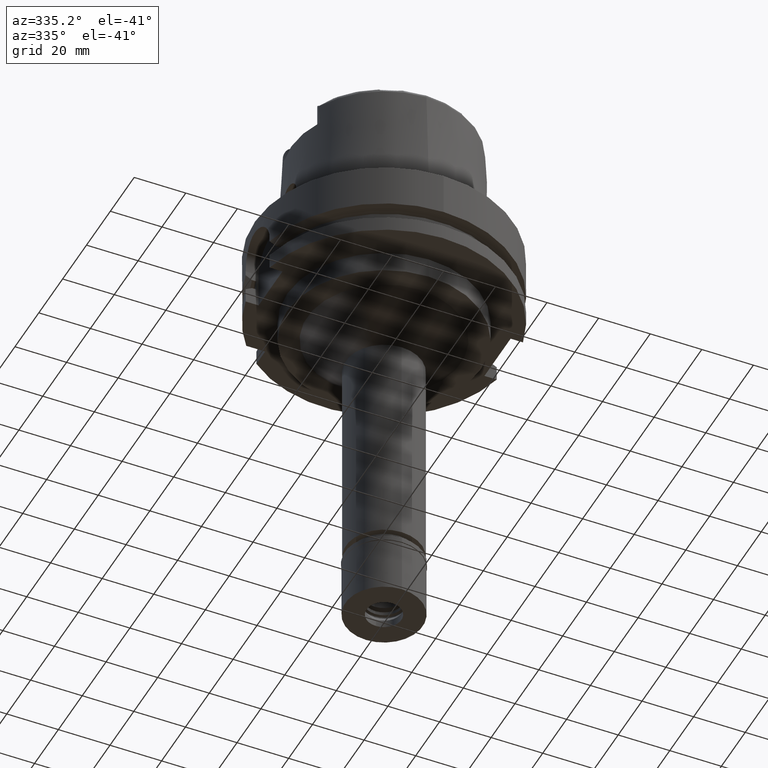
[diagram: clean part render]
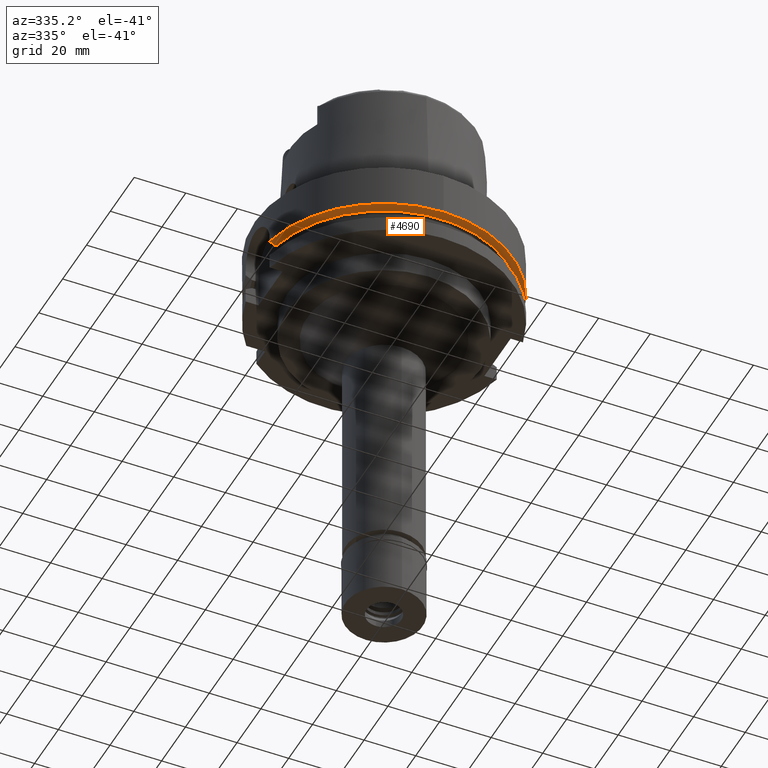
[diagram: same view with one face highlighted and labeled with its STEP entity id]
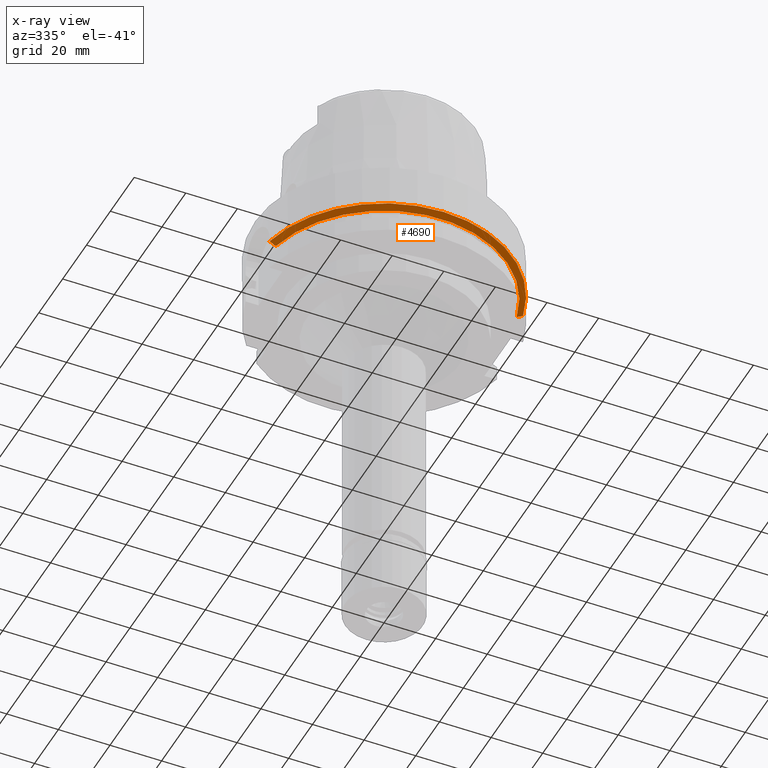
[diagram: x-ray of the same camera — body ghosted, the highlighted face saturated]
A machine part, auxiliary view. The second image highlights one B-rep face of the part: STEP entity #4690.
The next image is the same camera in x-ray: the body ghosted, the highlighted face saturated — about 0% of this face is hidden behind the body in this view.
In plain terms, the highlighted conical surface has half-angle 60 deg.
Its self-contained STEP definition (entity closure, byte-faithful):
#120 = CARTESIAN_POINT ( 'NONE',  ( 47.14851446809999658, -11.00000000000000000, -17.66774350266999960 ) ) ;
#169 = CIRCLE ( 'NONE', #5538, 49.99999999999997868 ) ;
#189 = DIRECTION ( 'NONE',  ( 0.0000000000000000000, 0.0000000000000000000, 1.000000000000000000 ) ) ;
#248 = CARTESIAN_POINT ( 'NONE',  ( 0.0000000000000000000, -50.00000000000000000, -16.75240473580999989 ) ) ;
#426 = B_SPLINE_CURVE_WITH_KNOTS ( 'NONE', 3,
 ( #2859, #2467, #2949, #3371, #4571, #5536 ),
 .UNSPECIFIED., .F., .F.,
 ( 4, 1, 1, 4 ),
 ( 0.0000000000000000000, 0.3333333333333000081, 0.6666666666667000474, 1.000000000000000000 ),
 .UNSPECIFIED. ) ;
#460 = CARTESIAN_POINT ( 'NONE',  ( -48.98979485565999425, -10.00000000000000000, -16.75240473580999989 ) ) ;
#554 = DIRECTION ( 'NONE',  ( 0.0000000000000000000, 1.000000000000000000, 0.0000000000000000000 ) ) ;
#763 = DIRECTION ( 'NONE',  ( 0.0000000000000000000, -1.000000000000000000, 0.0000000000000000000 ) ) ;
#1037 = CIRCLE ( 'NONE', #2110, 47.62259526419000366 ) ;
#1055 = AXIS2_PLACEMENT_3D ( 'NONE', #2047, #5476, #763 ) ;
#1263 = VERTEX_POINT ( 'NONE', #248 ) ;
#1410 = CARTESIAN_POINT ( 'NONE',  ( 48.50399904748000068, -11.00000000000000000, -16.90503024962000111 ) ) ;
#1470 = VERTEX_POINT ( 'NONE', #3203 ) ;
#1482 = DIRECTION ( 'NONE',  ( 0.0000000000000000000, 0.0000000000000000000, 1.000000000000000000 ) ) ;
#1544 = B_SPLINE_CURVE_WITH_KNOTS ( 'NONE', 3,
 ( #3462, #1410, #5170, #120, #3574, #5288 ),
 .UNSPECIFIED., .F., .F.,
 ( 4, 1, 1, 4 ),
 ( 0.0000000000000000000, 0.3333333333333000081, 0.6666666666667000474, 1.000000000000000000 ),
 .UNSPECIFIED. ) ;
#1737 = VERTEX_POINT ( 'NONE', #460 ) ;
#1850 = CONICAL_SURFACE ( 'NONE', #3479, 48.81129763208999606, 1.047197551196400456 ) ;
#1880 = DIRECTION ( 'NONE',  ( -0.9777047459300259868, -0.2099843560504055240, 0.0000000000000000000 ) ) ;
#2034 = EDGE_CURVE ( 'NONE', #1470, #2123, #1544, .T. ) ;
#2047 = CARTESIAN_POINT ( 'NONE',  ( 0.0000000000000000000, 0.0000000000000000000, -16.75240473580999989 ) ) ;
#2088 = VERTEX_POINT ( 'NONE', #2664 ) ;
#2110 = AXIS2_PLACEMENT_3D ( 'NONE', #2309, #189, #1880 ) ;
#2123 = VERTEX_POINT ( 'NONE', #3038 ) ;
#2309 = CARTESIAN_POINT ( 'NONE',  ( 0.0000000000000000000, 0.0000000000000000000, -18.12500000000000000 ) ) ;
#2333 = EDGE_CURVE ( 'NONE', #2088, #1737, #426, .T. ) ;
#2467 = CARTESIAN_POINT ( 'NONE',  ( -46.83084020607000042, -10.00000000000000000, -17.97258933137000270 ) ) ;
#2664 = CARTESIAN_POINT ( 'NONE',  ( -46.56083740329999898, -10.00000000000000000, -18.12500000000000000 ) ) ;
#2859 = CARTESIAN_POINT ( 'NONE',  ( -46.56083740329999898, -10.00000000000000000, -18.12500000000000000 ) ) ;
#2949 = CARTESIAN_POINT ( 'NONE',  ( -47.37076227628000424, -10.00000000000000000, -17.66769351206999872 ) ) ;
#3032 = EDGE_CURVE ( 'NONE', #2088, #2123, #1037, .T. ) ;
#3038 = CARTESIAN_POINT ( 'NONE',  ( 46.33477721644000269, -11.00000000000000000, -18.12500000000000000 ) ) ;
#3203 = CARTESIAN_POINT ( 'NONE',  ( 48.77499359303000404, -11.00000000000000000, -16.75240473580999989 ) ) ;
#3220 = EDGE_LOOP ( 'NONE', ( #5422, #4870, #4925, #5041, #5070 ) ) ;
#3283 = DIRECTION ( 'NONE',  ( 0.0000000000000000000, 0.0000000000000000000, 1.000000000000000000 ) ) ;
#3371 = CARTESIAN_POINT ( 'NONE',  ( -48.18041161677000161, -10.00000000000000000, -17.21015586611000003 ) ) ;
#3462 = CARTESIAN_POINT ( 'NONE',  ( 48.77499359303000404, -11.00000000000000000, -16.75240473580999989 ) ) ;
#3479 = AXIS2_PLACEMENT_3D ( 'NONE', #5304, #1482, #554 ) ;
#3574 = CARTESIAN_POINT ( 'NONE',  ( 46.60605711264999940, -11.00000000000000000, -17.97261191788999923 ) ) ;
#4415 = EDGE_CURVE ( 'NONE', #1263, #1470, #4543, .T. ) ;
#4543 = CIRCLE ( 'NONE', #1055, 50.00000000000000000 ) ;
#4545 = EDGE_CURVE ( 'NONE', #1737, #1263, #169, .T. ) ;
#4571 = CARTESIAN_POINT ( 'NONE',  ( -48.72002593967000195, -10.00000000000000000, -16.90500907969000011 ) ) ;
#4690 = ADVANCED_FACE ( 'NONE', ( #4825 ), #1850, .T. ) ;
#4825 = FACE_OUTER_BOUND ( 'NONE', #3220, .T. ) ;
#4870 = ORIENTED_EDGE ( 'NONE', *, *, #2034, .F. ) ;
#4925 = ORIENTED_EDGE ( 'NONE', *, *, #4415, .F. ) ;
#4994 = DIRECTION ( 'NONE',  ( -0.9797958971132723072, -0.1999999999999946265, 0.0000000000000000000 ) ) ;
#5041 = ORIENTED_EDGE ( 'NONE', *, *, #4545, .F. ) ;
#5070 = ORIENTED_EDGE ( 'NONE', *, *, #2333, .F. ) ;
#5170 = CARTESIAN_POINT ( 'NONE',  ( 47.96191616323000062, -11.00000000000000000, -17.21020456769999996 ) ) ;
#5288 = CARTESIAN_POINT ( 'NONE',  ( 46.33477721644000269, -11.00000000000000000, -18.12500000000000000 ) ) ;
#5304 = CARTESIAN_POINT ( 'NONE',  ( 0.0000000000000000000, 0.0000000000000000000, -17.43870236789999950 ) ) ;
#5422 = ORIENTED_EDGE ( 'NONE', *, *, #3032, .T. ) ;
#5425 = CARTESIAN_POINT ( 'NONE',  ( 0.0000000000000000000, 0.0000000000000000000, -16.75240473580999989 ) ) ;
#5476 = DIRECTION ( 'NONE',  ( 0.0000000000000000000, 0.0000000000000000000, 1.000000000000000000 ) ) ;
#5536 = CARTESIAN_POINT ( 'NONE',  ( -48.98979485565999425, -10.00000000000000000, -16.75240473580999989 ) ) ;
#5538 = AXIS2_PLACEMENT_3D ( 'NONE', #5425, #3283, #4994 ) ;